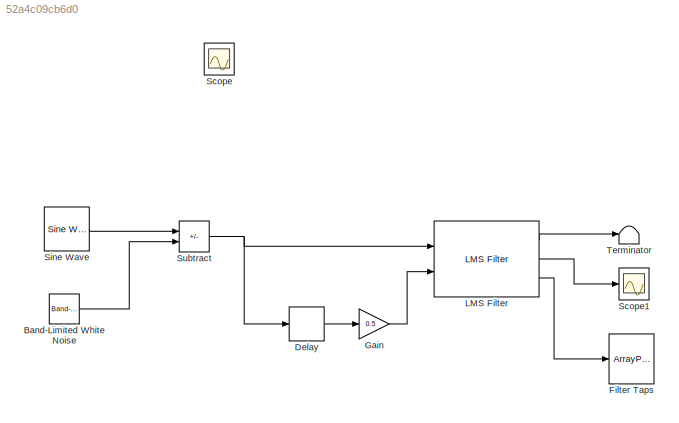
MODEL slx_52a4c09cb6d0
KIND model
CONFIG AbsTol = auto
CONFIG EnableMultiTasking = off
CONFIG FixedStep = auto
CONFIG MaxStep = auto
CONFIG MinStep = auto
CONFIG RelTol = 1e-3
CONFIG SampleTimeConstraint = Unconstrained
CONFIG Solver = VariableStepAuto
CONFIG SolverName = VariableStepAuto
CONFIG StartTime = 0.0
CONFIG StopTime = 1.0
WORKSPACE source: mxarray member
WORKSPACE PnFrequencyOffset_375 = [30000 100000 1000000 3000000 10000000]
BLOCK [Reference] Band-Limited White Noise  REF=simulink/Sources/Band-Limited
White Noise
  Ports = [0, 1]
  SourceBlock = simulink/Sources/Band-Limited\nWhite Noise
  SourceProductBaseCode = SL
  SourceType = Band-Limited White Noise.
BLOCK [Delay] Delay
  DelayLength = 8
  InputPortMap = u0
  Ports = [1, 1]
BLOCK [ArrayPlot] Filter Taps
  Ports = [1]
  ScopeSpecificationString = dsp.scopes.ArrayPlotBlockSpecification('CurrentConfiguration', extmgr.ConfigurationSet(extmgr.Configuration('Core','General UI',true),extmgr.Configuration('Core','Source UI',true),extmgr.Configuration('Sources','WiredSimulink',true),extmgr.Configuration('Sources','Simulink',false),extmgr.Configuration('Sources','File',false),extmgr.Configuration('Sources','Workspace',false),extmgr.Configuration('S...<+2749ch>
BLOCK [Gain] Gain
  Gain = 0.5
BLOCK [Reference] LMS Filter  REF=dspadpt3/LMS Filter
  Ports = [2, 3]
  SourceBlock = dspadpt3/LMS Filter
  SourceProductBaseCode = DS
  SourceType = LMS Filter
BLOCK [Scope] Scope
  Floating = off
  IOType = viewer
  NumInputPorts = 1
  Ports = []
  ScopeSpecificationString = Simulink.scopes.TimeScopeBlockCfg('CurrentConfiguration', extmgr.ConfigurationSet(extmgr.Configuration('Core','General UI',true),extmgr.Configuration('Core','Source UI',true),extmgr.Configuration('Sources','WiredSimulink',true),extmgr.Configuration('Visuals','Time Domain',true,'SerializedDisplays',{struct('MinYLimReal','-2.04236','MaxYLimReal','1.95705','YLabelReal','','MinYLimMag','0.00000','MaxY...<+1499ch>
BLOCK [Scope] Scope1
  Floating = off
  NumInputPorts = 1
  Ports = [1]
  ScopeSpecificationString = Simulink.scopes.TimeScopeBlockCfg('CurrentConfiguration', extmgr.ConfigurationSet(extmgr.Configuration('Core','General UI',true),extmgr.Configuration('Core','Source UI',true),extmgr.Configuration('Sources','WiredSimulink',true,'DataLoggingVariableName','ScopeData1'),extmgr.Configuration('Visuals','Time Domain',true),extmgr.Configuration('Tools','Plot Navigation',true),extmgr.Configuration('Tools',...<+40ch>
BLOCK [Reference] Sine Wave  REF=dspsrcs4/Sine Wave
  Ports = [0, 1]
  SourceBlock = dspsrcs4/Sine Wave
  SourceProductBaseCode = DS
  SourceType = Sine Wave
BLOCK [Sum] Subtract
  IconShape = rectangular
  Inputs = +-
  Ports = [2, 1]
BLOCK [Terminator] Terminator
LINE Band-Limited White Noise:1 -> Subtract:2
LINE Delay:1 -> Gain:1
LINE Gain:1 -> LMS Filter:2
LINE LMS Filter:1 -> Terminator:1
LINE LMS Filter:2 -> Scope1:1
LINE LMS Filter:3 -> Filter Taps:1
LINE Sine Wave:1 -> Subtract:1
NET Subtract:1 -> Delay:1, LMS Filter:1
note: NET lines group one-source signal fan-out (src -> all destinations, sorted); 1:1 wires keep LINE
